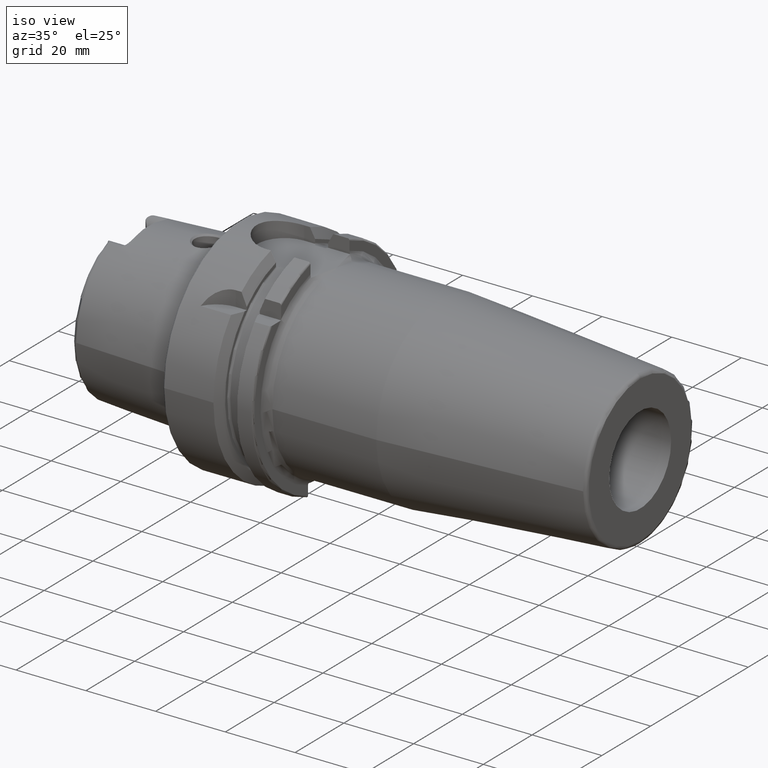
[diagram: clean part render]
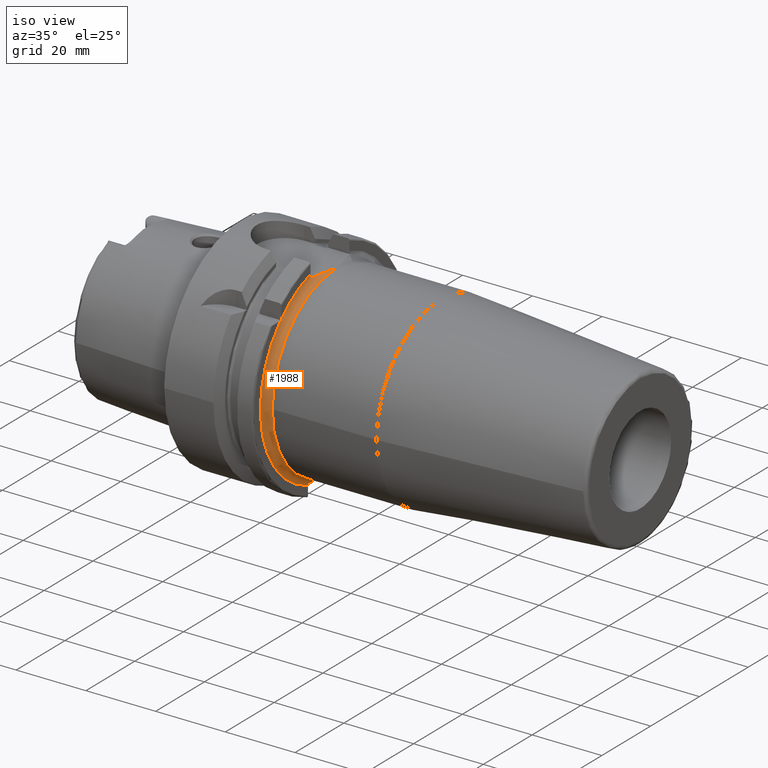
[diagram: same view with one face highlighted and labeled with its STEP entity id]
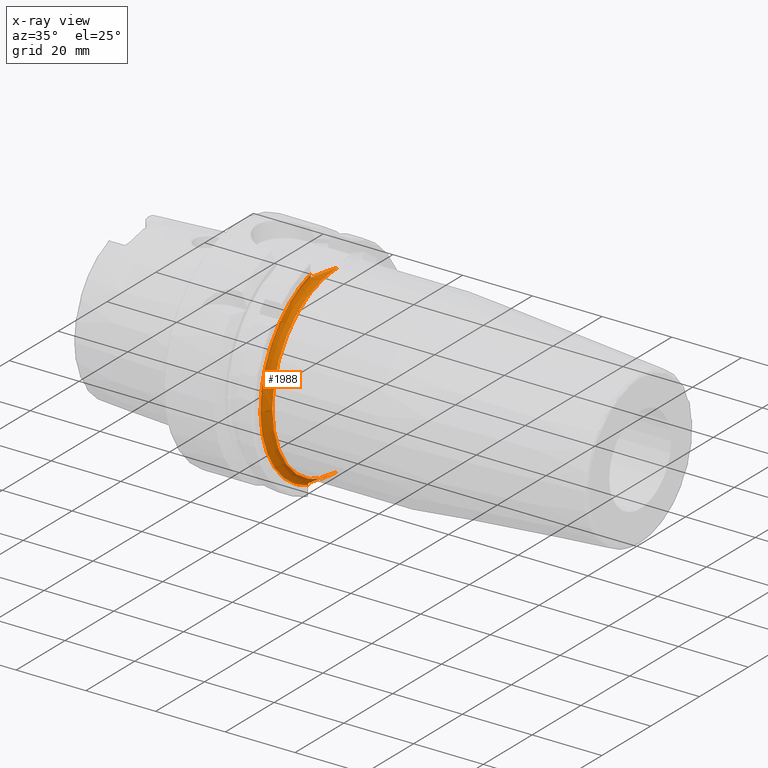
[diagram: x-ray of the same camera — body ghosted, the highlighted face saturated]
A machine part, iso view. The second image highlights one B-rep face of the part: STEP entity #1988.
The next image is the same camera in x-ray: the body ghosted, the highlighted face saturated — about 0% of this face is hidden behind the body in this view.
In plain terms, the highlighted toroidal blend (fillet) surface has major radius 28.5 mm and minor (blend) radius 2 mm.
Its self-contained STEP definition (entity closure, byte-faithful):
#39=B_SPLINE_CURVE_WITH_KNOTS('',3,(#3015,#3016,#3017,#3018),
 .UNSPECIFIED.,.F.,.F.,(4,4),(1.05575710714623,1.08503686759355),
 .UNSPECIFIED.);
#40=B_SPLINE_CURVE_WITH_KNOTS('',3,(#3022,#3023,#3024,#3025),
 .UNSPECIFIED.,.F.,.F.,(4,4),(0.303739569697938,0.3549998506851),
 .UNSPECIFIED.);
#41=B_SPLINE_CURVE_WITH_KNOTS('',3,(#3027,#3028,#3029,#3030,#3031,#3032),
 .UNSPECIFIED.,.F.,.F.,(4,2,4),(2.17849182915998,2.53709790919781,3.04164091113761),
 .UNSPECIFIED.);
#42=B_SPLINE_CURVE_WITH_KNOTS('',3,(#3038,#3039,#3040,#3041,#3042,#3043),
 .UNSPECIFIED.,.F.,.F.,(4,2,4),(0.,0.504543001939792,0.767530689085053),
 .UNSPECIFIED.);
#43=B_SPLINE_CURVE_WITH_KNOTS('',3,(#3045,#3046,#3047,#3048,#3049,#3050),
 .UNSPECIFIED.,.F.,.F.,(4,2,4),(0.824788819037936,0.829488730454407,0.90776602934349),
 .UNSPECIFIED.);
#44=B_SPLINE_CURVE_WITH_KNOTS('',3,(#3053,#3054,#3055,#3056),
 .UNSPECIFIED.,.F.,.F.,(4,4),(0.352462408235689,0.381742168720422),
 .UNSPECIFIED.);
#162=TOROIDAL_SURFACE('',#2140,28.5,2.);
#224=FACE_OUTER_BOUND('',#344,.T.);
#344=EDGE_LOOP('',(#1349,#1350,#1351,#1352,#1353,#1354,#1355,#1356,#1357,
#1358));
#685=CIRCLE('',#2141,28.5);
#686=CIRCLE('',#2142,26.5);
#687=CIRCLE('',#2143,26.5);
#688=CIRCLE('',#2144,28.5);
#810=VERTEX_POINT('',#3013);
#811=VERTEX_POINT('',#3014);
#812=VERTEX_POINT('',#3019);
#813=VERTEX_POINT('',#3021);
#814=VERTEX_POINT('',#3026);
#815=VERTEX_POINT('',#3033);
#816=VERTEX_POINT('',#3035);
#817=VERTEX_POINT('',#3037);
#818=VERTEX_POINT('',#3044);
#819=VERTEX_POINT('',#3051);
#1021=EDGE_CURVE('',#810,#811,#39,.F.);
#1022=EDGE_CURVE('',#810,#812,#685,.T.);
#1023=EDGE_CURVE('',#813,#812,#40,.F.);
#1024=EDGE_CURVE('',#814,#813,#41,.F.);
#1025=EDGE_CURVE('',#814,#815,#686,.T.);
#1026=EDGE_CURVE('',#815,#816,#687,.T.);
#1027=EDGE_CURVE('',#816,#817,#42,.T.);
#1028=EDGE_CURVE('',#817,#818,#43,.T.);
#1029=EDGE_CURVE('',#818,#819,#688,.T.);
#1030=EDGE_CURVE('',#811,#819,#44,.F.);
#1349=ORIENTED_EDGE('',*,*,#1021,.F.);
#1350=ORIENTED_EDGE('',*,*,#1022,.T.);
#1351=ORIENTED_EDGE('',*,*,#1023,.F.);
#1352=ORIENTED_EDGE('',*,*,#1024,.F.);
#1353=ORIENTED_EDGE('',*,*,#1025,.T.);
#1354=ORIENTED_EDGE('',*,*,#1026,.T.);
#1355=ORIENTED_EDGE('',*,*,#1027,.T.);
#1356=ORIENTED_EDGE('',*,*,#1028,.T.);
#1357=ORIENTED_EDGE('',*,*,#1029,.T.);
#1358=ORIENTED_EDGE('',*,*,#1030,.F.);
#1988=ADVANCED_FACE('',(#224),#162,.F.);
#2140=AXIS2_PLACEMENT_3D('',#3012,#2411,#2412);
#2141=AXIS2_PLACEMENT_3D('',#3020,#2413,#2414);
#2142=AXIS2_PLACEMENT_3D('',#3034,#2415,#2416);
#2143=AXIS2_PLACEMENT_3D('',#3036,#2417,#2418);
#2144=AXIS2_PLACEMENT_3D('',#3052,#2419,#2420);
#2411=DIRECTION('center_axis',(-1.,0.,0.));
#2412=DIRECTION('ref_axis',(0.,0.,1.));
#2413=DIRECTION('center_axis',(1.,0.,0.));
#2414=DIRECTION('ref_axis',(0.,-1.,-1.22464679914735E-16));
#2415=DIRECTION('center_axis',(-1.,0.,0.));
#2416=DIRECTION('ref_axis',(0.,-1.,-1.22464679914735E-16));
#2417=DIRECTION('center_axis',(-1.,0.,0.));
#2418=DIRECTION('ref_axis',(0.,-1.,-1.22464679914735E-16));
#2419=DIRECTION('center_axis',(1.,0.,0.));
#2420=DIRECTION('ref_axis',(0.,-1.,-1.22464679914735E-16));
#3012=CARTESIAN_POINT('Origin',(28.,0.,0.));
#3013=CARTESIAN_POINT('',(26.,-20.303940504247,20.));
#3014=CARTESIAN_POINT('',(26.011668763741,-20.,19.9999999995981));
#3015=CARTESIAN_POINT('Ctrl Pts',(26.0116687636798,-19.9999999999949,20.));
#3016=CARTESIAN_POINT('Ctrl Pts',(26.0036790134152,-20.104142717436,20.));
#3017=CARTESIAN_POINT('Ctrl Pts',(26.,-20.2063413027559,20.));
#3018=CARTESIAN_POINT('Ctrl Pts',(26.,-20.303940504247,20.));
#3019=CARTESIAN_POINT('',(26.,-9.,-27.0416345659799));
#3020=CARTESIAN_POINT('Origin',(26.,0.,0.));
#3021=CARTESIAN_POINT('',(26.0670166811047,-9.,-26.500000014031));
#3022=CARTESIAN_POINT('Ctrl Pts',(26.,-9.,-27.0416345659799));
#3023=CARTESIAN_POINT('Ctrl Pts',(26.,-9.,-26.8707669626894));
#3024=CARTESIAN_POINT('Ctrl Pts',(26.0218770304782,-9.,-26.6794891387263));
#3025=CARTESIAN_POINT('Ctrl Pts',(26.0670166844291,-9.,-26.5000000148431));
#3026=CARTESIAN_POINT('',(28.,0.,-26.5));
#3027=CARTESIAN_POINT('Ctrl Pts',(26.067016688111,-9.00000000059664,-26.5));
#3028=CARTESIAN_POINT('Ctrl Pts',(26.1728942654707,-7.76038375353318,-26.5));
#3029=CARTESIAN_POINT('Ctrl Pts',(26.3945885792555,-6.47666004681024,-26.5));
#3030=CARTESIAN_POINT('Ctrl Pts',(27.0599925000597,-3.40403280438228,-26.5));
#3031=CARTESIAN_POINT('Ctrl Pts',(27.5544776456,-1.62172584908145,-26.5));
#3032=CARTESIAN_POINT('Ctrl Pts',(28.,0.,-26.5));
#3033=CARTESIAN_POINT('',(28.,-26.5,-3.24531401774049E-15));
#3034=CARTESIAN_POINT('Origin',(28.,0.,0.));
#3035=CARTESIAN_POINT('',(28.,0.,26.5));
#3036=CARTESIAN_POINT('Origin',(28.,0.,0.));
#3037=CARTESIAN_POINT('',(26.175280551541,-8.,26.4999999998768));
#3038=CARTESIAN_POINT('Ctrl Pts',(28.,0.,26.5));
#3039=CARTESIAN_POINT('Ctrl Pts',(27.5544776456,-1.62172584908145,26.5));
#3040=CARTESIAN_POINT('Ctrl Pts',(27.0599925000597,-3.40403280438227,26.5));
#3041=CARTESIAN_POINT('Ctrl Pts',(26.4683010524078,-6.13627889480141,26.5));
#3042=CARTESIAN_POINT('Ctrl Pts',(26.2950619213893,-7.07633608760457,26.5));
#3043=CARTESIAN_POINT('Ctrl Pts',(26.175280551437,-7.99999999998649,26.5));
#3044=CARTESIAN_POINT('',(26.,-8.,27.3541587331799));
#3045=CARTESIAN_POINT('Ctrl Pts',(26.1752805514962,-8.,26.499999999858));
#3046=CARTESIAN_POINT('Ctrl Pts',(26.1689698823973,-8.,26.5146907584306));
#3047=CARTESIAN_POINT('Ctrl Pts',(26.1628831534617,-8.,26.5293142746696));
#3048=CARTESIAN_POINT('Ctrl Pts',(26.0593725173444,-8.,26.7858059199536));
#3049=CARTESIAN_POINT('Ctrl Pts',(26.,-8.,27.0932344035496));
#3050=CARTESIAN_POINT('Ctrl Pts',(26.,-8.,27.3541587331799));
#3051=CARTESIAN_POINT('',(26.,-20.,20.303940504247));
#3052=CARTESIAN_POINT('Origin',(26.,0.,0.));
#3053=CARTESIAN_POINT('Ctrl Pts',(26.,-20.,20.303940504247));
#3054=CARTESIAN_POINT('Ctrl Pts',(26.,-20.,20.2063413026312));
#3055=CARTESIAN_POINT('Ctrl Pts',(26.0036790134247,-20.,20.1041427171747));
#3056=CARTESIAN_POINT('Ctrl Pts',(26.0116687637104,-20.,19.9999999995955));